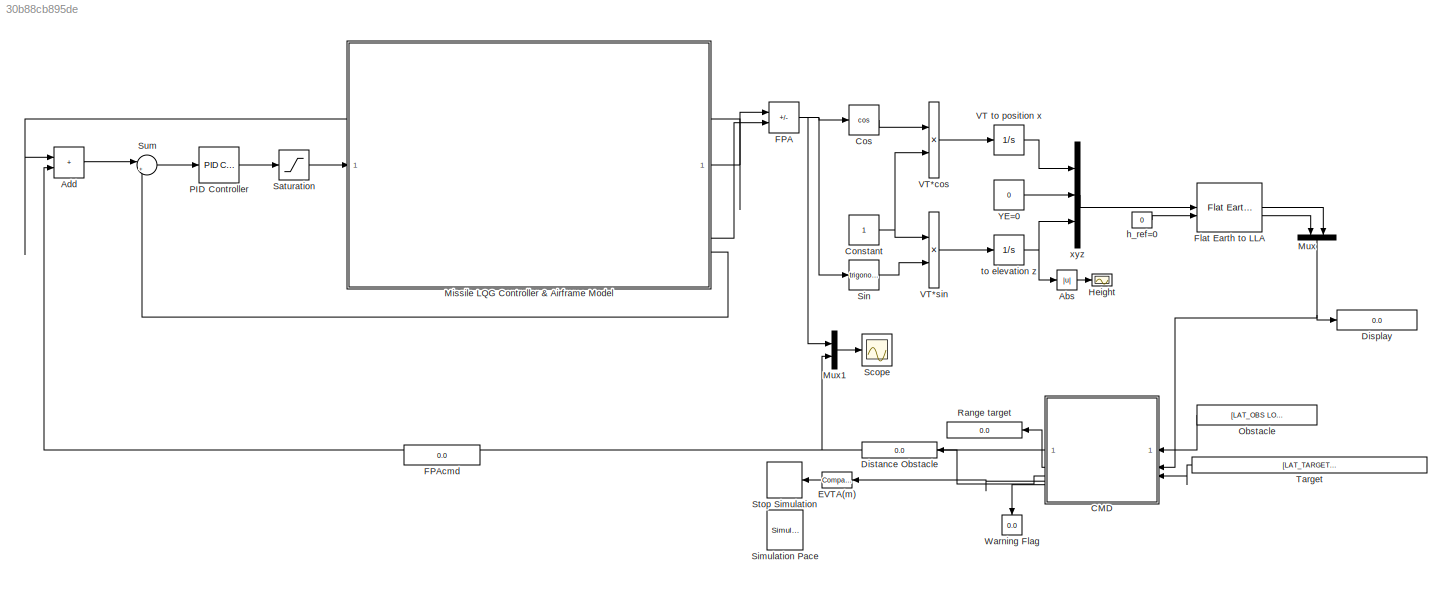
MODEL slx_30b88cb895de
KIND model
CONFIG AbsTol = auto
CONFIG EnableMultiTasking = off
CONFIG FixedStep = auto
CONFIG MaxStep = auto
CONFIG MinStep = auto
CONFIG RelTol = 1e-3
CONFIG SampleTimeConstraint = Unconstrained
CONFIG SolverName = ode45
CONFIG StartTime = 0.0
CONFIG StopTime = 80.0
BLOCK [Abs] Abs
  SaturateOnIntegerOverflow = off
BLOCK [Sum] Add
  IconShape = rectangular
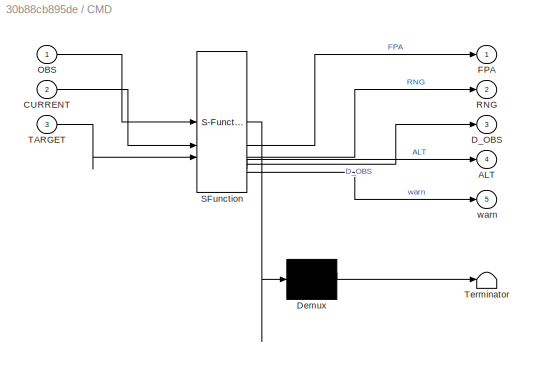
BLOCK [SubSystem] CMD
  ErrorFcn = Stateflow.Translate.translate
  PermitHierarchicalResolution = ExplicitOnly
  SFBlockType = MATLAB Function
  TreatAsAtomicUnit = on
BLOCK [Demux] CMD/ Demux 
  Outputs = 1
BLOCK [S-Function] CMD/ SFunction 
  EnableBusSupport = off
  FunctionName = sf_sfun
  PortCounts = [3 6]
  SFcnIsStateOwnerBlock = off
  SFunctionDeploymentMode = off
  Tag = Stateflow S-Function 2
BLOCK [Terminator] CMD/ Terminator 
BLOCK [Outport] CMD/ALT
  Port = 4
BLOCK [Inport] CMD/CURRENT
  Port = 2
BLOCK [Outport] CMD/D_OBS
  Port = 3
BLOCK [Outport] CMD/FPA
BLOCK [Inport] CMD/OBS
BLOCK [Outport] CMD/RNG
  Port = 2
BLOCK [Inport] CMD/TARGET
  Port = 3
BLOCK [Outport] CMD/warn
  Port = 5
BLOCK [Constant] Constant
BLOCK [Trigonometry] Cos
  Operator = cos
BLOCK [Display] Display
  Decimation = 1
BLOCK [Display] Distance Obstacle
  Decimation = 1
BLOCK [Reference] EVTA(m)   REF=simulink/Logic and Bit
Operations/Compare
To Constant
  SourceBlock = simulink/Logic and Bit\nOperations/Compare\nTo Constant
  SourceType = Compare To Constant
BLOCK [Sum] FPA
  IconShape = rectangular
  Inputs = -+
BLOCK [Display] FPAcmd
  Decimation = 1
  NameLocation = left
BLOCK [Reference] Flat Earth to LLA  REF=aerolibtransform2/Flat Earth to LLA
  SourceBlock = aerolibtransform2/Flat Earth to LLA
  SourceType = Flat Earth to LLA
BLOCK [Scope] Height
  Floating = off
  NumInputPorts = 1
  ScopeSpecificationString = Simulink.scopes.TimeScopeBlockCfg('CurrentConfiguration', extmgr.ConfigurationSet(extmgr.Configuration('Core','General UI',true),extmgr.Configuration('Core','Source UI',true),extmgr.Configuration('Sources','WiredSimulink',true,'DataLoggingVariableName','ScopeData1'),extmgr.Configuration('Visuals','Time Domain',true),extmgr.Configuration('Tools','Plot Navigation',true),extmgr.Configuration('Tools',...<+40ch>
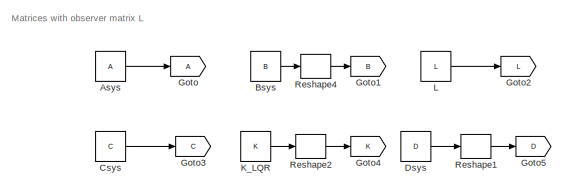
[diagram: Missile LQG Controller & Airframe Model - part 1/2, top left region]
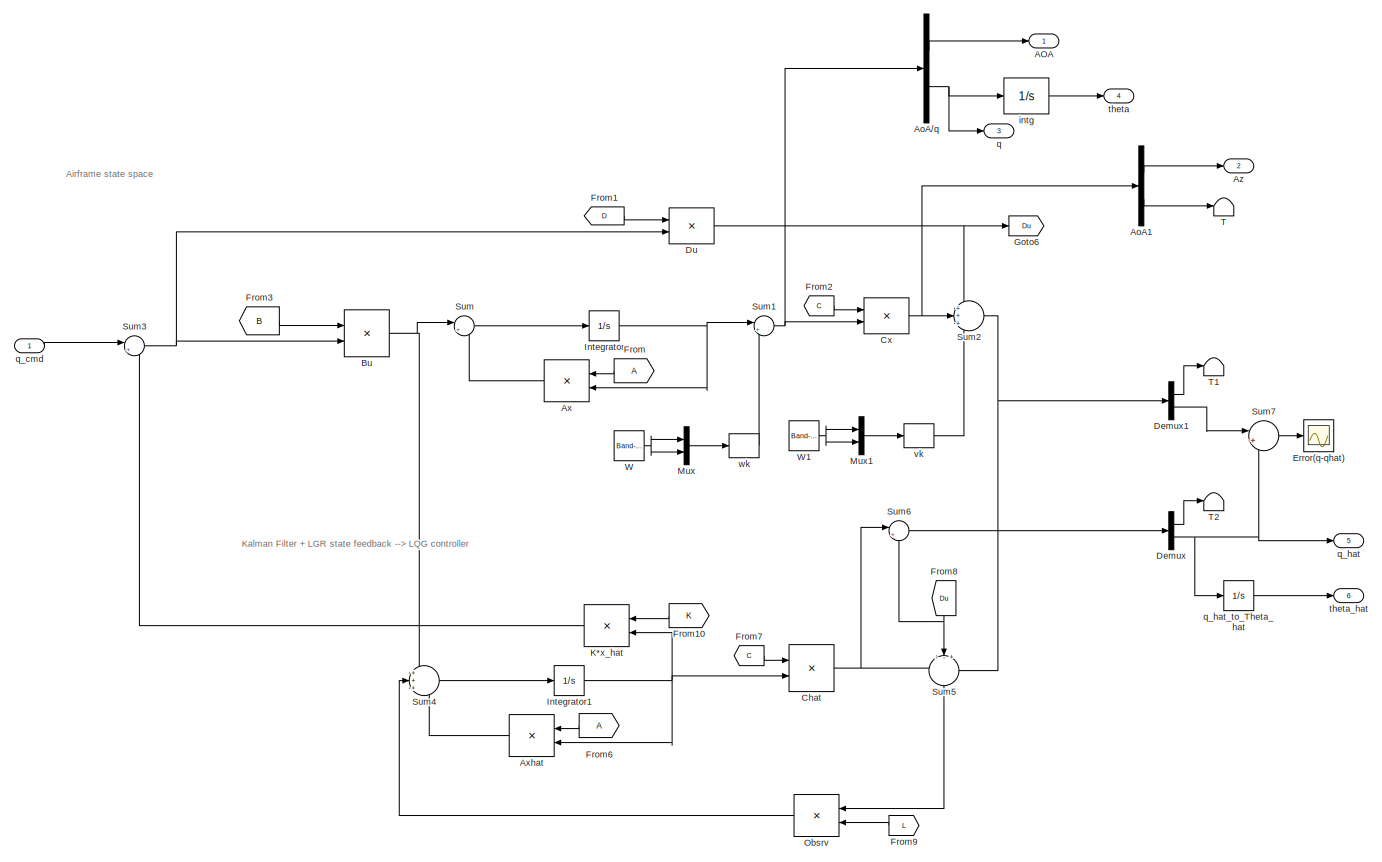
[diagram: Missile LQG Controller & Airframe Model - part 2/2, most of the canvas]
BLOCK [SubSystem] Missile LQG Controller & Airframe Model
BLOCK [Outport] Missile LQG Controller & Airframe Model/AOA
BLOCK [Demux] Missile LQG Controller & Airframe Model/AoA//q
  Outputs = 2
BLOCK [Demux] Missile LQG Controller & Airframe Model/AoA1
  Outputs = 2
BLOCK [Constant] Missile LQG Controller & Airframe Model/Asys
  Value = A
BLOCK [Product] Missile LQG Controller & Airframe Model/Ax
  Multiplication = Matrix(*)
BLOCK [Product] Missile LQG Controller & Airframe Model/Axhat
  Multiplication = Matrix(*)
BLOCK [Outport] Missile LQG Controller & Airframe Model/Az
  Port = 2
BLOCK [Constant] Missile LQG Controller & Airframe Model/Bsys
  Value = B
BLOCK [Product] Missile LQG Controller & Airframe Model/Bu
  Multiplication = Matrix(*)
BLOCK [Product] Missile LQG Controller & Airframe Model/Chat
  Multiplication = Matrix(*)
BLOCK [Constant] Missile LQG Controller & Airframe Model/Csys
  Value = C
BLOCK [Product] Missile LQG Controller & Airframe Model/Cx
  Multiplication = Matrix(*)
BLOCK [Demux] Missile LQG Controller & Airframe Model/Demux
  Outputs = 2
BLOCK [Demux] Missile LQG Controller & Airframe Model/Demux1
  Outputs = 2
BLOCK [Constant] Missile LQG Controller & Airframe Model/Dsys
  Value = D
BLOCK [Product] Missile LQG Controller & Airframe Model/Du
  Multiplication = Matrix(*)
BLOCK [Scope] Missile LQG Controller & Airframe Model/Error(q-qhat)
  Floating = off
  NumInputPorts = 1
  ScopeSpecificationString = Simulink.scopes.TimeScopeBlockCfg('CurrentConfiguration', extmgr.ConfigurationSet(extmgr.Configuration('Core','General UI',true),extmgr.Configuration('Core','Source UI',true),extmgr.Configuration('Sources','WiredSimulink',true),extmgr.Configuration('Visuals','Time Domain',true),extmgr.Configuration('Tools','Plot Navigation',true),extmgr.Configuration('Tools','Measurements',true)),'Version','2024a'...<+1ch>
BLOCK [From] Missile LQG Controller & Airframe Model/From
BLOCK [From] Missile LQG Controller & Airframe Model/From1
  GotoTag = D
BLOCK [From] Missile LQG Controller & Airframe Model/From10
  GotoTag = K
BLOCK [From] Missile LQG Controller & Airframe Model/From2
  GotoTag = C
BLOCK [From] Missile LQG Controller & Airframe Model/From3
  GotoTag = B
BLOCK [From] Missile LQG Controller & Airframe Model/From6
BLOCK [From] Missile LQG Controller & Airframe Model/From7
  GotoTag = C
BLOCK [From] Missile LQG Controller & Airframe Model/From8
  GotoTag = Du
  NameLocation = left
BLOCK [From] Missile LQG Controller & Airframe Model/From9
  GotoTag = L
BLOCK [Goto] Missile LQG Controller & Airframe Model/Goto
BLOCK [Goto] Missile LQG Controller & Airframe Model/Goto1
  GotoTag = B
BLOCK [Goto] Missile LQG Controller & Airframe Model/Goto2
  GotoTag = L
BLOCK [Goto] Missile LQG Controller & Airframe Model/Goto3
  GotoTag = C
BLOCK [Goto] Missile LQG Controller & Airframe Model/Goto4
  GotoTag = K
BLOCK [Goto] Missile LQG Controller & Airframe Model/Goto5
  GotoTag = D
BLOCK [Goto] Missile LQG Controller & Airframe Model/Goto6
  GotoTag = Du
BLOCK [Integrator] Missile LQG Controller & Airframe Model/Integrator
BLOCK [Integrator] Missile LQG Controller & Airframe Model/Integrator1
BLOCK [Product] Missile LQG Controller & Airframe Model/K*x_hat
  Multiplication = Matrix(*)
BLOCK [Constant] Missile LQG Controller & Airframe Model/K_LQR
  Value = K
BLOCK [Constant] Missile LQG Controller & Airframe Model/L
  Value = L
BLOCK [Mux] Missile LQG Controller & Airframe Model/Mux
  DisplayOption = bar
  Inputs = 2
BLOCK [Mux] Missile LQG Controller & Airframe Model/Mux1
  DisplayOption = bar
  Inputs = 2
BLOCK [Product] Missile LQG Controller & Airframe Model/Obsrv
  Multiplication = Matrix(*)
BLOCK [Reshape] Missile LQG Controller & Airframe Model/Reshape1
  OutputDimensionality = Customize
  OutputDimensions = [2,1]
BLOCK [Reshape] Missile LQG Controller & Airframe Model/Reshape2
  OutputDimensionality = Customize
  OutputDimensions = [1,2]
BLOCK [Reshape] Missile LQG Controller & Airframe Model/Reshape4
  OutputDimensionality = Customize
  OutputDimensions = [2,1]
BLOCK [Sum] Missile LQG Controller & Airframe Model/Sum
  Inputs = |++
BLOCK [Sum] Missile LQG Controller & Airframe Model/Sum1
  Inputs = |++
BLOCK [Sum] Missile LQG Controller & Airframe Model/Sum2
  Inputs = +++
BLOCK [Sum] Missile LQG Controller & Airframe Model/Sum3
  Inputs = |+-
BLOCK [Sum] Missile LQG Controller & Airframe Model/Sum4
  Inputs = +++
BLOCK [Sum] Missile LQG Controller & Airframe Model/Sum5
  Inputs = --+
  NameLocation = left
BLOCK [Sum] Missile LQG Controller & Airframe Model/Sum6
  Inputs = |++
BLOCK [Sum] Missile LQG Controller & Airframe Model/Sum7
  Inputs = |+-
BLOCK [Terminator] Missile LQG Controller & Airframe Model/T
BLOCK [Terminator] Missile LQG Controller & Airframe Model/T1
BLOCK [Terminator] Missile LQG Controller & Airframe Model/T2
BLOCK [Reference] Missile LQG Controller & Airframe Model/W  REF=simulink/Sources/Band-Limited
White Noise
  SourceBlock = simulink/Sources/Band-Limited\nWhite Noise
  SourceType = Band-Limited White Noise.
BLOCK [Reference] Missile LQG Controller & Airframe Model/W1  REF=simulink/Sources/Band-Limited
White Noise
  SourceBlock = simulink/Sources/Band-Limited\nWhite Noise
  SourceType = Band-Limited White Noise.
BLOCK [Integrator] Missile LQG Controller & Airframe Model/intg
BLOCK [Outport] Missile LQG Controller & Airframe Model/q
  Port = 3
BLOCK [Inport] Missile LQG Controller & Airframe Model/q_cmd
BLOCK [Outport] Missile LQG Controller & Airframe Model/q_hat
  Port = 5
BLOCK [Integrator] Missile LQG Controller & Airframe Model/q_hat_to_Theta_hat
BLOCK [Outport] Missile LQG Controller & Airframe Model/theta
  Port = 4
BLOCK [Outport] Missile LQG Controller & Airframe Model/theta_hat
  Port = 6
BLOCK [Reshape] Missile LQG Controller & Airframe Model/vk
  OutputDimensionality = Customize
  OutputDimensions = [2,1]
BLOCK [Reshape] Missile LQG Controller & Airframe Model/wk
  OutputDimensionality = Customize
  OutputDimensions = [2,1]
BLOCK [Mux] Mux
  DisplayOption = bar
  Inputs = 2
  NameLocation = left
BLOCK [Mux] Mux1
  DisplayOption = bar
  Inputs = 2
BLOCK [Constant] Obstacle
  Value = [LAT_OBS LON_OBS]
BLOCK [Reference] PID Controller  REF=slpidlib/PID Controller
  LibrarySourceBlock = simulink/Continuous/PID Controller
  SourceBlock = slpidlib/PID Controller
  SourceType = PID 1dof
BLOCK [Display] Range target
  Decimation = 1
BLOCK [Saturate] Saturation
BLOCK [Scope] Scope
  Floating = off
  NumInputPorts = 1
  ScopeSpecificationString = Simulink.scopes.TimeScopeBlockCfg('CurrentConfiguration', extmgr.ConfigurationSet(extmgr.Configuration('Core','General UI',true),extmgr.Configuration('Core','Source UI',true),extmgr.Configuration('Sources','WiredSimulink',true,'DataLoggingVariableName','ScopeData2'),extmgr.Configuration('Visuals','Time Domain',true),extmgr.Configuration('Tools','Plot Navigation',true),extmgr.Configuration('Tools',...<+40ch>
BLOCK [Reference] Simulation Pace  REF=aerolibanimutils/Simulation Pace
  AttributesFormatString = %<SleepMode>\n%<SimulationPace> sec/sec
  SourceBlock = aerolibanimutils/Simulation Pace
  SourceType = Simulation Pace
BLOCK [Trigonometry] Sin
BLOCK [Stop] Stop Simulation
BLOCK [Sum] Sum
  Inputs = |+-
BLOCK [Constant] Target
  Value = [LAT_TARGET LON_TARGET ELEV_TARGET]
BLOCK [Integrator] VT to position x
BLOCK [Product] VT*cos
BLOCK [Product] VT*sin
BLOCK [Display] Warning Flag
  Decimation = 1
  NameLocation = right
BLOCK [Constant] YE=0
  Value = 0
BLOCK [Constant] h_ref=0
  Value = 0
BLOCK [Integrator] to elevation z
  InitialCondition = -ELEV_INIT
BLOCK [Mux] xyz
  DisplayOption = bar
  Inputs = 3
ANNOTATION Missile LQG Controller & Airframe Model: Airframe state space
ANNOTATION Missile LQG Controller & Airframe Model: Kalman Filter + LGR state feedback --> LQG controller
ANNOTATION Missile LQG Controller & Airframe Model: Matrices with observer matrix L
LINE Abs:1 -> Height:1
LINE Add:1 -> Sum:1
NET CMD:1 -> Add:2, FPAcmd:1, Mux1:2
LINE CMD:2 -> Range target:1
LINE CMD:3 -> Distance Obstacle:1
LINE CMD:4 -> EVTA(m) :1
LINE CMD:5 -> Warning Flag:1
NET Constant:1 -> VT*cos:2, VT*sin:1
LINE Cos:1 -> VT*cos:1
LINE EVTA(m) :1 -> Stop Simulation:1
NET FPA:1 -> Cos:1, Mux1:1, Sin:1
LINE Flat Earth to LLA:1 -> Mux:2
LINE Flat Earth to LLA:2 -> Mux:1
LINE Missile LQG Controller & Airframe Model/AoA//q:1 -> Missile LQG Controller & Airframe Model/AOA:1
NET Missile LQG Controller & Airframe Model/AoA//q:2 -> Missile LQG Controller & Airframe Model/intg:1, Missile LQG Controller & Airframe Model/q:1
LINE Missile LQG Controller & Airframe Model/AoA1:1 -> Missile LQG Controller & Airframe Model/Az:1
LINE Missile LQG Controller & Airframe Model/AoA1:2 -> Missile LQG Controller & Airframe Model/T:1
LINE Missile LQG Controller & Airframe Model/Asys:1 -> Missile LQG Controller & Airframe Model/Goto:1
LINE Missile LQG Controller & Airframe Model/Ax:1 -> Missile LQG Controller & Airframe Model/Sum:2
LINE Missile LQG Controller & Airframe Model/Axhat:1 -> Missile LQG Controller & Airframe Model/Sum4:3
LINE Missile LQG Controller & Airframe Model/Bsys:1 -> Missile LQG Controller & Airframe Model/Reshape4:1
NET Missile LQG Controller & Airframe Model/Bu:1 -> Missile LQG Controller & Airframe Model/Sum4:1, Missile LQG Controller & Airframe Model/Sum:1
NET Missile LQG Controller & Airframe Model/Chat:1 -> Missile LQG Controller & Airframe Model/Sum5:1, Missile LQG Controller & Airframe Model/Sum6:1
LINE Missile LQG Controller & Airframe Model/Csys:1 -> Missile LQG Controller & Airframe Model/Goto3:1
NET Missile LQG Controller & Airframe Model/Cx:1 -> Missile LQG Controller & Airframe Model/AoA1:1, Missile LQG Controller & Airframe Model/Sum2:2
LINE Missile LQG Controller & Airframe Model/Demux1:1 -> Missile LQG Controller & Airframe Model/T1:1
LINE Missile LQG Controller & Airframe Model/Demux1:2 -> Missile LQG Controller & Airframe Model/Sum7:1
LINE Missile LQG Controller & Airframe Model/Demux:1 -> Missile LQG Controller & Airframe Model/T2:1
NET Missile LQG Controller & Airframe Model/Demux:2 -> Missile LQG Controller & Airframe Model/Sum7:2, Missile LQG Controller & Airframe Model/q_hat:1, Missile LQG Controller & Airframe Model/q_hat_to_Theta_hat:1
LINE Missile LQG Controller & Airframe Model/Dsys:1 -> Missile LQG Controller & Airframe Model/Reshape1:1
NET Missile LQG Controller & Airframe Model/Du:1 -> Missile LQG Controller & Airframe Model/Goto6:1, Missile LQG Controller & Airframe Model/Sum2:1
LINE Missile LQG Controller & Airframe Model/From10:1 -> Missile LQG Controller & Airframe Model/K*x_hat:1
LINE Missile LQG Controller & Airframe Model/From1:1 -> Missile LQG Controller & Airframe Model/Du:1
LINE Missile LQG Controller & Airframe Model/From2:1 -> Missile LQG Controller & Airframe Model/Cx:1
LINE Missile LQG Controller & Airframe Model/From3:1 -> Missile LQG Controller & Airframe Model/Bu:1
LINE Missile LQG Controller & Airframe Model/From6:1 -> Missile LQG Controller & Airframe Model/Axhat:1
LINE Missile LQG Controller & Airframe Model/From7:1 -> Missile LQG Controller & Airframe Model/Chat:1
NET Missile LQG Controller & Airframe Model/From8:1 -> Missile LQG Controller & Airframe Model/Sum5:2, Missile LQG Controller & Airframe Model/Sum6:2
LINE Missile LQG Controller & Airframe Model/From9:1 -> Missile LQG Controller & Airframe Model/Obsrv:2
LINE Missile LQG Controller & Airframe Model/From:1 -> Missile LQG Controller & Airframe Model/Ax:1
NET Missile LQG Controller & Airframe Model/Integrator1:1 -> Missile LQG Controller & Airframe Model/Axhat:2, Missile LQG Controller & Airframe Model/Chat:2, Missile LQG Controller & Airframe Model/K*x_hat:2
NET Missile LQG Controller & Airframe Model/Integrator:1 -> Missile LQG Controller & Airframe Model/Ax:2, Missile LQG Controller & Airframe Model/Sum1:1
LINE Missile LQG Controller & Airframe Model/K*x_hat:1 -> Missile LQG Controller & Airframe Model/Sum3:2
LINE Missile LQG Controller & Airframe Model/K_LQR:1 -> Missile LQG Controller & Airframe Model/Reshape2:1
LINE Missile LQG Controller & Airframe Model/L:1 -> Missile LQG Controller & Airframe Model/Goto2:1
LINE Missile LQG Controller & Airframe Model/Mux1:1 -> Missile LQG Controller & Airframe Model/vk:1
LINE Missile LQG Controller & Airframe Model/Mux:1 -> Missile LQG Controller & Airframe Model/wk:1
LINE Missile LQG Controller & Airframe Model/Obsrv:1 -> Missile LQG Controller & Airframe Model/Sum4:2
LINE Missile LQG Controller & Airframe Model/Reshape1:1 -> Missile LQG Controller & Airframe Model/Goto5:1
LINE Missile LQG Controller & Airframe Model/Reshape2:1 -> Missile LQG Controller & Airframe Model/Goto4:1
LINE Missile LQG Controller & Airframe Model/Reshape4:1 -> Missile LQG Controller & Airframe Model/Goto1:1
NET Missile LQG Controller & Airframe Model/Sum1:1 -> Missile LQG Controller & Airframe Model/AoA//q:1, Missile LQG Controller & Airframe Model/Cx:2
NET Missile LQG Controller & Airframe Model/Sum2:1 -> Missile LQG Controller & Airframe Model/Demux1:1, Missile LQG Controller & Airframe Model/Sum5:3
NET Missile LQG Controller & Airframe Model/Sum3:1 -> Missile LQG Controller & Airframe Model/Bu:2, Missile LQG Controller & Airframe Model/Du:2
LINE Missile LQG Controller & Airframe Model/Sum4:1 -> Missile LQG Controller & Airframe Model/Integrator1:1
LINE Missile LQG Controller & Airframe Model/Sum5:1 -> Missile LQG Controller & Airframe Model/Obsrv:1
LINE Missile LQG Controller & Airframe Model/Sum6:1 -> Missile LQG Controller & Airframe Model/Demux:1
LINE Missile LQG Controller & Airframe Model/Sum7:1 -> Missile LQG Controller & Airframe Model/Error(q-qhat):1
LINE Missile LQG Controller & Airframe Model/Sum:1 -> Missile LQG Controller & Airframe Model/Integrator:1
NET Missile LQG Controller & Airframe Model/W1:1 -> Missile LQG Controller & Airframe Model/Mux1:1, Missile LQG Controller & Airframe Model/Mux1:2
NET Missile LQG Controller & Airframe Model/W:1 -> Missile LQG Controller & Airframe Model/Mux:1, Missile LQG Controller & Airframe Model/Mux:2
LINE Missile LQG Controller & Airframe Model/intg:1 -> Missile LQG Controller & Airframe Model/theta:1
LINE Missile LQG Controller & Airframe Model/q_cmd:1 -> Missile LQG Controller & Airframe Model/Sum3:1
LINE Missile LQG Controller & Airframe Model/q_hat_to_Theta_hat:1 -> Missile LQG Controller & Airframe Model/theta_hat:1
LINE Missile LQG Controller & Airframe Model/vk:1 -> Missile LQG Controller & Airframe Model/Sum2:3
LINE Missile LQG Controller & Airframe Model/wk:1 -> Missile LQG Controller & Airframe Model/Sum1:2
NET Missile LQG Controller & Airframe Model:1 -> Add:1, FPA:1
LINE Missile LQG Controller & Airframe Model:4 -> FPA:2
LINE Missile LQG Controller & Airframe Model:6 -> Sum:2
LINE Mux1:1 -> Scope:1
NET Mux:1 -> CMD:2, Display:1
LINE Obstacle:1 -> CMD:1
LINE PID Controller:1 -> Saturation:1
LINE Saturation:1 -> Missile LQG Controller & Airframe Model:1
LINE Sin:1 -> VT*sin:2
LINE Sum:1 -> PID Controller:1
LINE Target:1 -> CMD:3
LINE VT to position x:1 -> xyz:1
LINE VT*cos:1 -> VT to position x:1
LINE VT*sin:1 -> to elevation z:1
LINE YE=0:1 -> xyz:2
LINE h_ref=0:1 -> Flat Earth to LLA:2
NET to elevation z:1 -> Abs:1, xyz:3
LINE xyz:1 -> Flat Earth to LLA:1
note: NET lines group one-source signal fan-out (src -> all destinations, sorted); 1:1 wires keep LINE
CHART CMD states=1 transitions=1
  STATE_LABEL 'eML_blk_kernel()'
  STATE_LABEL 'SCRIPT:\nfunction [FPA,RNG,D_OBS,ALT,warn] = fcn(OBS, CURRENT, TARGET)\n\nR = 6.371e3;\nd2r = pi/180;\n\n%OBSTACLE LOCATION\nLAT_OBS = OBS(1);\nLON_OBS = OBS(2);\n\n%OBSTACLE THRESHOLD (ZONE)\nthres = 2000; % 2km\n\n%TARGET LOCATION\nLAT_TARGET = TARGET(1);\nLON_TARGET = TARGET(2);\nELEV_TARGET = TARGET(3);\n\n%Current LOCATION\nELEV_CUR = CURRENT(1);\nLAT_CUR = CURRENT(2);\nLON_CUR = CURRENT(3);\n\n%% distance to targe...<+826ch>'
CHART  states=0 transitions=0
